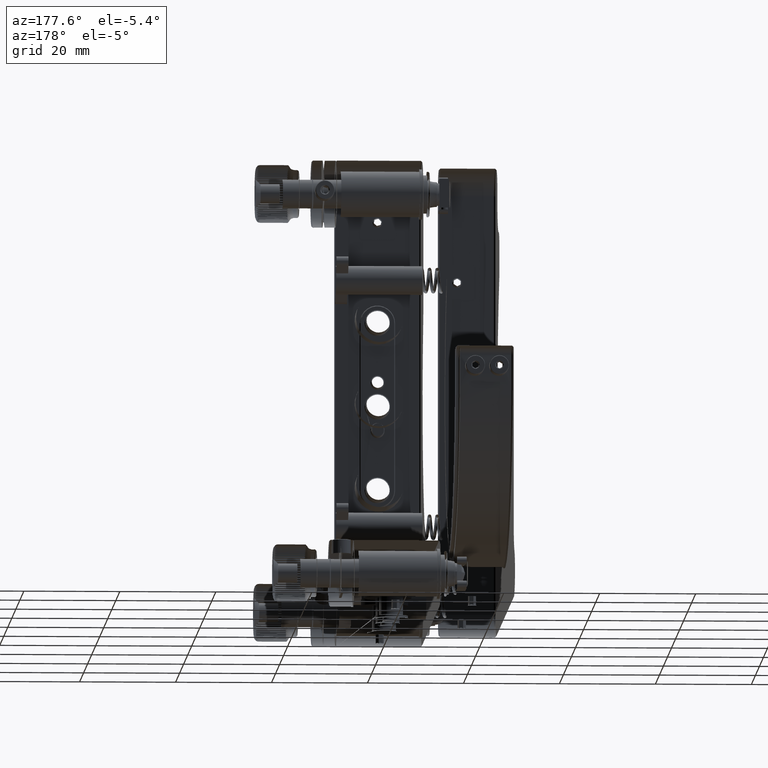
[diagram: clean part render]
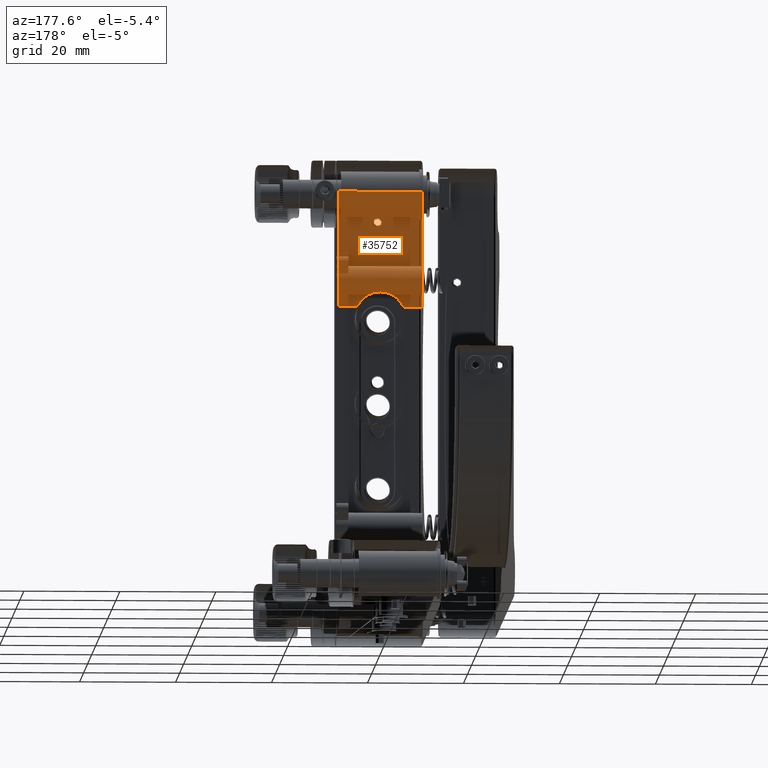
[diagram: same view with one face highlighted and labeled with its STEP entity id]
A machine part, auxiliary view. The second image highlights one B-rep face of the part: STEP entity #35752.
In plain terms, the highlighted planar face has unit normal (0, -1, 0).
Its self-contained STEP definition (entity closure, byte-faithful):
#483 = EDGE_LOOP ( 'NONE', ( #27905, #45797, #29525, #32043, #51591, #29539 ) ) ;
#1310 = LINE ( 'NONE', #4847, #39684 ) ;
#2606 = CARTESIAN_POINT ( 'NONE',  ( -9.000000000000001776, -36.79999999999999716, 19.62963321104090753 ) ) ;
#4847 = CARTESIAN_POINT ( 'NONE',  ( 8.750000000000000000, -36.79999999999999716, 50.79999999999998295 ) ) ;
#6269 = CARTESIAN_POINT ( 'NONE',  ( -8.750000000019316104, -36.79999999999277094, 43.79999999999999716 ) ) ;
#7907 = VERTEX_POINT ( 'NONE', #37551 ) ;
#8549 = VECTOR ( 'NONE', #8792, 1000.000000000000000 ) ;
#8701 = EDGE_CURVE ( 'NONE', #47795, #33996, #1310, .T. ) ;
#8792 = DIRECTION ( 'NONE',  ( 1.000000000000000000, 0.000000000000000000, 0.000000000000000000 ) ) ;
#8849 = DIRECTION ( 'NONE',  ( 0.000000000000000000, -1.000000000000000000, 0.000000000000000000 ) ) ;
#11038 = CARTESIAN_POINT ( 'NONE',  ( 8.749999999990905053, -36.79999999999277094, 43.79999999999997584 ) ) ;
#11579 = EDGE_CURVE ( 'NONE', #17845, #28125, #39702, .T. ) ;
#12081 = CARTESIAN_POINT ( 'NONE',  ( 8.750000000000000000, -36.79999999999999716, 19.62963321104090397 ) ) ;
#13663 = LINE ( 'NONE', #17206, #8549 ) ;
#15069 = DIRECTION ( 'NONE',  ( 1.000000000000000000, 0.000000000000000000, 0.000000000000000000 ) ) ;
#16292 = CARTESIAN_POINT ( 'NONE',  ( -9.000000000000001776, -36.79999999999999716, 43.79999999999998295 ) ) ;
#17178 = AXIS2_PLACEMENT_3D ( 'NONE', #24613, #24881, #53264 ) ;
#17206 = CARTESIAN_POINT ( 'NONE',  ( -9.000000000000001776, -36.79999999999999716, 19.62963321104090753 ) ) ;
#17845 = VERTEX_POINT ( 'NONE', #29635 ) ;
#20643 = CIRCLE ( 'NONE', #17178, 5.256266346200664685 ) ;
#21058 = DIRECTION ( 'NONE',  ( 0.000000000000000000, -0.000000000000000000, -1.000000000000000000 ) ) ;
#22601 = VECTOR ( 'NONE', #15069, 1000.000000000000000 ) ;
#22848 = EDGE_CURVE ( 'NONE', #28125, #7907, #20643, .T. ) ;
#22879 = CARTESIAN_POINT ( 'NONE',  ( -8.749999999999987566, -36.79999999999999716, 0.000000000000000000 ) ) ;
#24613 = CARTESIAN_POINT ( 'NONE',  ( 0.000000000000000000, -36.80000000002792149, 17.50000000000001066 ) ) ;
#24881 = DIRECTION ( 'NONE',  ( -0.000000000000000000, 1.000000000000000000, 0.000000000000000000 ) ) ;
#27905 = ORIENTED_EDGE ( 'NONE', *, *, #22848, .T. ) ;
#28125 = VERTEX_POINT ( 'NONE', #36997 ) ;
#28919 = CARTESIAN_POINT ( 'NONE',  ( -9.000000000000001776, -36.79999999999999716, 50.79999999999998295 ) ) ;
#29525 = ORIENTED_EDGE ( 'NONE', *, *, #8701, .T. ) ;
#29539 = ORIENTED_EDGE ( 'NONE', *, *, #11579, .T. ) ;
#29635 = CARTESIAN_POINT ( 'NONE',  ( -8.749999999999985789, -36.79999999999999716, 19.62963321104091108 ) ) ;
#32043 = ORIENTED_EDGE ( 'NONE', *, *, #39650, .T. ) ;
#33996 = VERTEX_POINT ( 'NONE', #11038 ) ;
#35752 = ADVANCED_FACE ( 'NONE', ( #37030 ), #53512, .T. ) ;
#36452 = EDGE_CURVE ( 'NONE', #7907, #47795, #13663, .T. ) ;
#36997 = CARTESIAN_POINT ( 'NONE',  ( -4.805517484011592622, -36.80000000005406946, 19.62963321101945979 ) ) ;
#37030 = FACE_OUTER_BOUND ( 'NONE', #483, .T. ) ;
#37551 = CARTESIAN_POINT ( 'NONE',  ( 4.805517484015096485, -36.80000000001395932, 19.62963321104090753 ) ) ;
#37639 = LINE ( 'NONE', #16292, #47529 ) ;
#37964 = VERTEX_POINT ( 'NONE', #6269 ) ;
#38415 = DIRECTION ( 'NONE',  ( -0.000000000000000000, 0.000000000000000000, 1.000000000000000000 ) ) ;
#39650 = EDGE_CURVE ( 'NONE', #33996, #37964, #37639, .T. ) ;
#39684 = VECTOR ( 'NONE', #38415, 1000.000000000000000 ) ;
#39702 = LINE ( 'NONE', #2606, #22601 ) ;
#43698 = LINE ( 'NONE', #22879, #44727 ) ;
#44727 = VECTOR ( 'NONE', #48017, 1000.000000000000000 ) ;
#44913 = AXIS2_PLACEMENT_3D ( 'NONE', #28919, #8849, #21058 ) ;
#45797 = ORIENTED_EDGE ( 'NONE', *, *, #36452, .T. ) ;
#47529 = VECTOR ( 'NONE', #49289, 1000.000000000000000 ) ;
#47795 = VERTEX_POINT ( 'NONE', #12081 ) ;
#48017 = DIRECTION ( 'NONE',  ( -0.000000000000000000, 0.000000000000000000, 1.000000000000000000 ) ) ;
#48110 = EDGE_CURVE ( 'NONE', #17845, #37964, #43698, .T. ) ;
#49289 = DIRECTION ( 'NONE',  ( -1.000000000000000000, -0.000000000000000000, -0.000000000000000000 ) ) ;
#51591 = ORIENTED_EDGE ( 'NONE', *, *, #48110, .F. ) ;
#53264 = DIRECTION ( 'NONE',  ( 0.000000000000000000, 0.000000000000000000, 1.000000000000000000 ) ) ;
#53512 = PLANE ( 'NONE',  #44913 ) ;